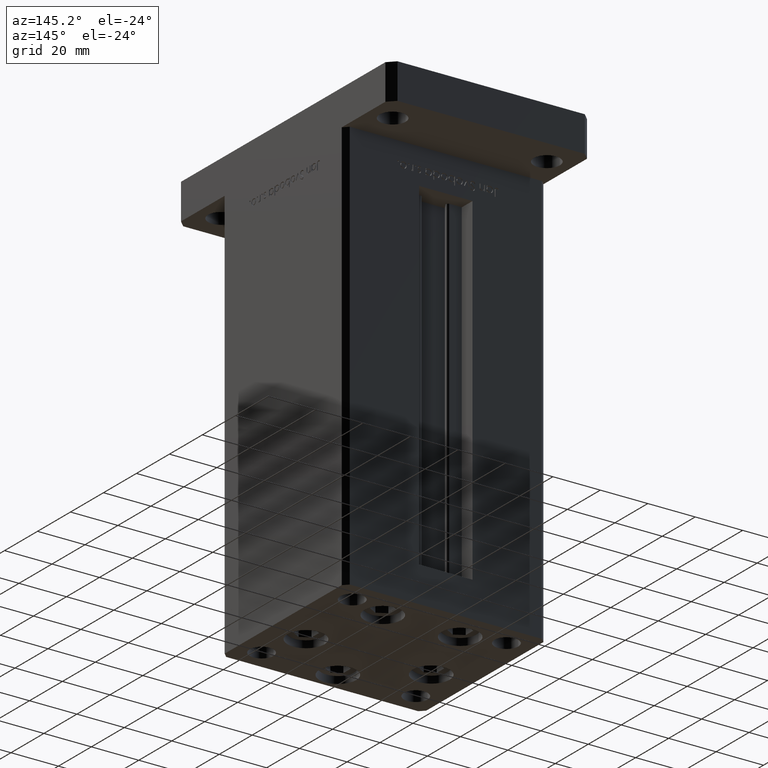
[diagram: clean part render]
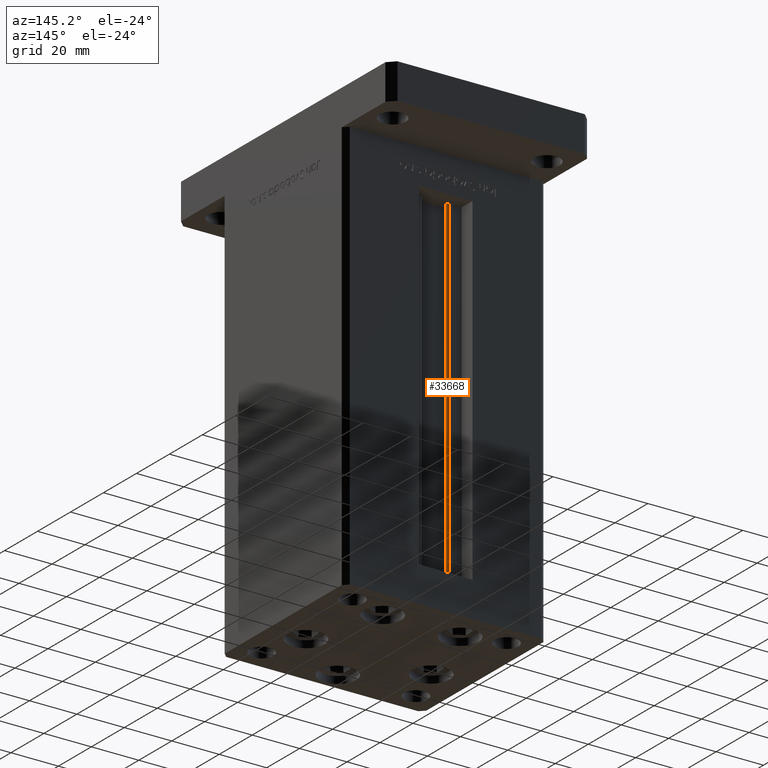
[diagram: same view with one face highlighted and labeled with its STEP entity id]
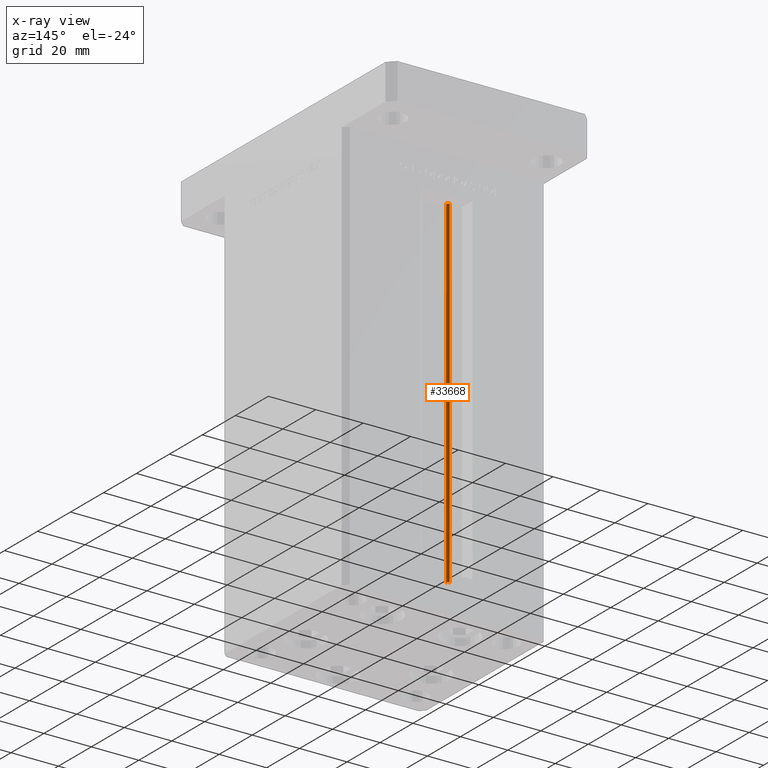
[diagram: x-ray of the same camera — body ghosted, the highlighted face saturated]
A machine part, auxiliary view. The second image highlights one B-rep face of the part: STEP entity #33668.
The next image is the same camera in x-ray: the body ghosted, the highlighted face saturated — about 0% of this face is hidden behind the body in this view.
In plain terms, the highlighted cylindrical surface (edge-blend (fillet) strip) has radius 0.9333 mm, axis along (0, 0, 1).
Its self-contained STEP definition (entity closure, byte-faithful):
#656 = EDGE_CURVE ( 'NONE', #34034, #45322, #11218, .T. ) ;
#783 = AXIS2_PLACEMENT_3D ( 'NONE', #15262, #27470, #35888 ) ;
#978 = CARTESIAN_POINT ( 'NONE',  ( -6.183333333333999704, 30.99999999999999289, 0.000000000000000000 ) ) ;
#3300 = EDGE_CURVE ( 'NONE', #28920, #34034, #50356, .T. ) ;
#3949 = AXIS2_PLACEMENT_3D ( 'NONE', #48934, #45640, #36975 ) ;
#3970 = VERTEX_POINT ( 'NONE', #47435 ) ;
#5197 = VECTOR ( 'NONE', #26205, 1000.000000000000000 ) ;
#5557 = CARTESIAN_POINT ( 'NONE',  ( -6.183333333333999704, 30.06666666666599141, 0.000000000000000000 ) ) ;
#7543 = VECTOR ( 'NONE', #44992, 1000.000000000000000 ) ;
#7575 = ORIENTED_EDGE ( 'NONE', *, *, #25971, .F. ) ;
#9622 = CYLINDRICAL_SURFACE ( 'NONE', #37076, 0.9333333333340015914 ) ;
#11218 = CIRCLE ( 'NONE', #783, 0.9333333333340015914 ) ;
#11957 = ORIENTED_EDGE ( 'NONE', *, *, #656, .T. ) ;
#13886 = CARTESIAN_POINT ( 'NONE',  ( -6.183333333333999704, 30.99999999999999289, 143.5000000000000000 ) ) ;
#13956 = FACE_OUTER_BOUND ( 'NONE', #36923, .T. ) ;
#15262 = CARTESIAN_POINT ( 'NONE',  ( -6.183333333333999704, 30.06666666666599141, 143.5000000000000000 ) ) ;
#18036 = DIRECTION ( 'NONE',  ( -0.000000000000000000, -0.000000000000000000, 1.000000000000000000 ) ) ;
#19499 = LINE ( 'NONE', #35773, #7543 ) ;
#19614 = ORIENTED_EDGE ( 'NONE', *, *, #24456, .F. ) ;
#24456 = EDGE_CURVE ( 'NONE', #28920, #3970, #49036, .T. ) ;
#25971 = EDGE_CURVE ( 'NONE', #3970, #45322, #19499, .T. ) ;
#26205 = DIRECTION ( 'NONE',  ( -0.000000000000000000, -0.000000000000000000, 1.000000000000000000 ) ) ;
#26984 = DIRECTION ( 'NONE',  ( 1.000000000000000000, 0.000000000000000000, 0.000000000000000000 ) ) ;
#27470 = DIRECTION ( 'NONE',  ( 0.000000000000000000, 0.000000000000000000, -1.000000000000000000 ) ) ;
#28920 = VERTEX_POINT ( 'NONE', #49648 ) ;
#33668 = ADVANCED_FACE ( 'NONE', ( #13956 ), #9622, .T. ) ;
#34034 = VERTEX_POINT ( 'NONE', #13886 ) ;
#35773 = CARTESIAN_POINT ( 'NONE',  ( -5.249999999999997335, 30.06666666666599141, 0.000000000000000000 ) ) ;
#35888 = DIRECTION ( 'NONE',  ( 1.000000000000000000, 0.000000000000000000, 0.000000000000000000 ) ) ;
#36923 = EDGE_LOOP ( 'NONE', ( #7575, #19614, #51486, #11957 ) ) ;
#36975 = DIRECTION ( 'NONE',  ( 1.000000000000000000, 0.000000000000000000, 0.000000000000000000 ) ) ;
#37076 = AXIS2_PLACEMENT_3D ( 'NONE', #5557, #18036, #26984 ) ;
#37525 = CARTESIAN_POINT ( 'NONE',  ( -5.249999999999997335, 30.06666666666599141, 143.5000000000000000 ) ) ;
#44992 = DIRECTION ( 'NONE',  ( -0.000000000000000000, -0.000000000000000000, 1.000000000000000000 ) ) ;
#45322 = VERTEX_POINT ( 'NONE', #37525 ) ;
#45640 = DIRECTION ( 'NONE',  ( -0.000000000000000000, -0.000000000000000000, -1.000000000000000000 ) ) ;
#47435 = CARTESIAN_POINT ( 'NONE',  ( -5.249999999999997335, 30.06666666666599141, 0.000000000000000000 ) ) ;
#48934 = CARTESIAN_POINT ( 'NONE',  ( -6.183333333333999704, 30.06666666666599141, 0.000000000000000000 ) ) ;
#49036 = CIRCLE ( 'NONE', #3949, 0.9333333333340015914 ) ;
#49648 = CARTESIAN_POINT ( 'NONE',  ( -6.183333333333999704, 30.99999999999999289, 0.000000000000000000 ) ) ;
#50356 = LINE ( 'NONE', #978, #5197 ) ;
#51486 = ORIENTED_EDGE ( 'NONE', *, *, #3300, .T. ) ;